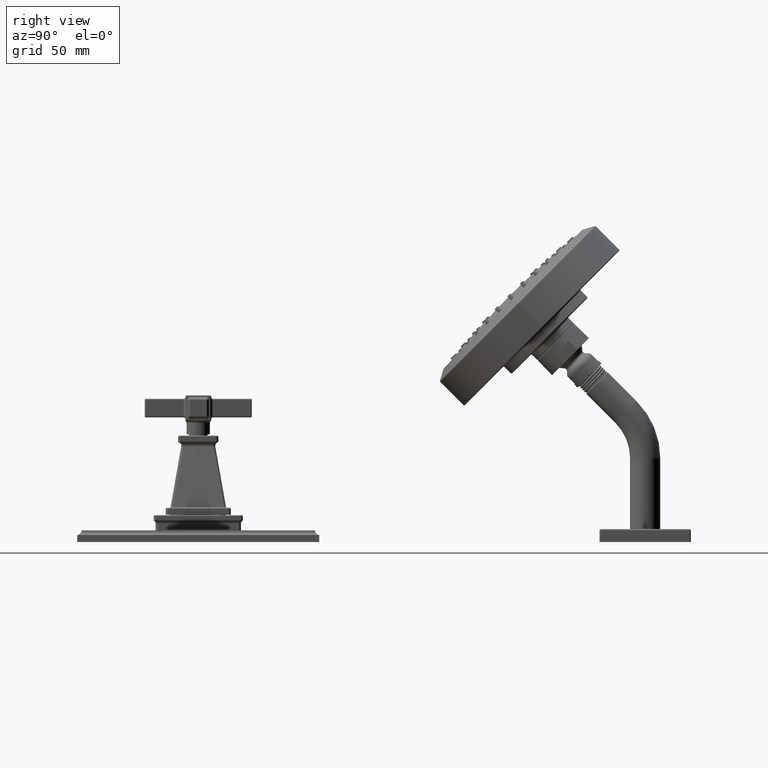
[diagram: clean part render]
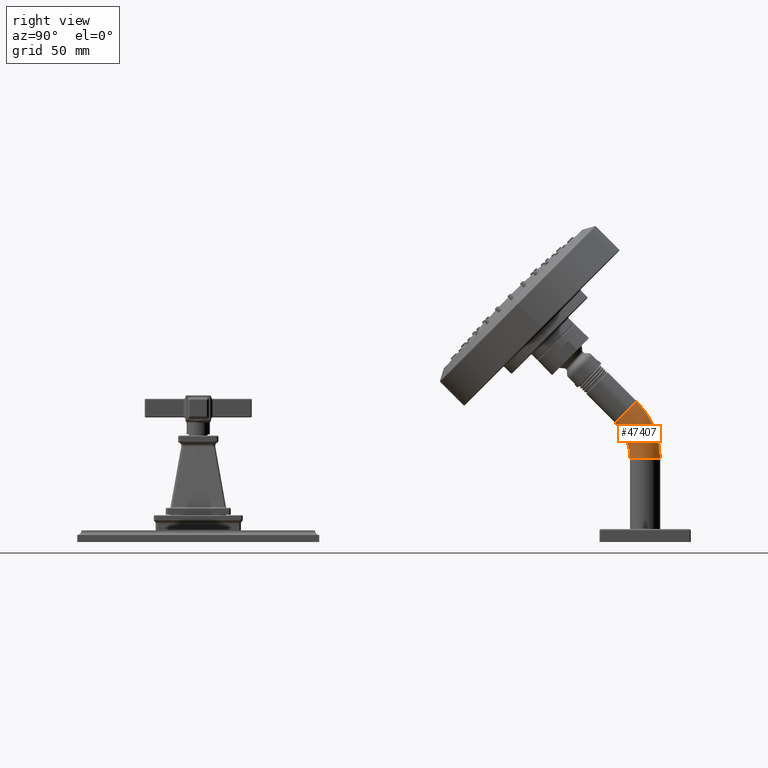
[diagram: same view with one face highlighted and labeled with its STEP entity id]
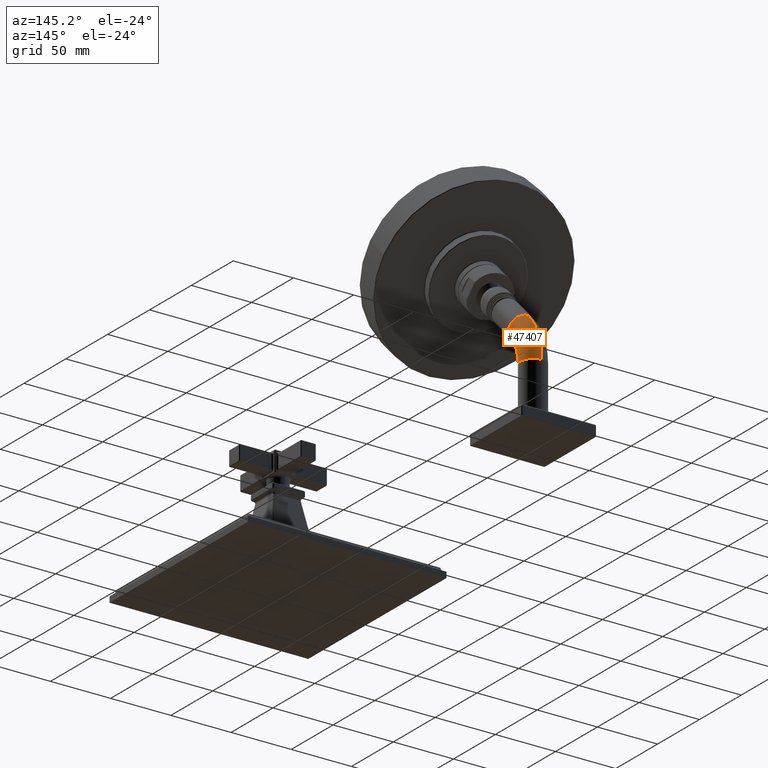
[diagram: same view with one face highlighted and labeled with its STEP entity id]
A machine part, right view. The second image highlights one B-rep face of the part: STEP entity #47407.
A second angle (auxiliary view) of the same face is appended — the face is thin or edge-on in the first view.
In plain terms, the highlighted toroidal blend (fillet) surface has major radius 44.45 mm and minor (blend) radius 10.3187 mm.
Its self-contained STEP definition (entity closure, byte-faithful):
#30164=CARTESIAN_POINT('',(0.E0,1.148743686708E1,3.487436867076E0));
#30165=DIRECTION('',(0.E0,-7.071067811865E-1,7.071067811865E-1));
#30166=DIRECTION('',(0.E0,-7.071067811865E-1,-7.071067811865E-1));
#30167=AXIS2_PLACEMENT_3D('',#30164,#30165,#30166);
#30197=CARTESIAN_POINT('',(0.E0,1.025E1,2.25E0));
#30198=DIRECTION('',(1.E0,0.E0,0.E0));
#30199=DIRECTION('',(0.E0,1.E0,0.E0));
#30200=AXIS2_PLACEMENT_3D('',#30197,#30198,#30199);
#30380=CARTESIAN_POINT('',(0.E0,1.2E1,2.25E0));
#30381=DIRECTION('',(0.E0,0.E0,1.E0));
#30382=DIRECTION('',(0.E0,-1.E0,0.E0));
#30383=AXIS2_PLACEMENT_3D('',#30380,#30381,#30382);
#30385=CARTESIAN_POINT('',(0.E0,1.025E1,2.25E0));
#30386=DIRECTION('',(1.E0,0.E0,0.E0));
#30387=DIRECTION('',(0.E0,1.E0,0.E0));
#30388=AXIS2_PLACEMENT_3D('',#30385,#30386,#30387);
#35300=CARTESIAN_POINT('',(0.E0,1.159375E1,2.25E0));
#35301=CARTESIAN_POINT('',(0.E0,1.240625E1,2.25E0));
#35302=VERTEX_POINT('',#35300);
#35303=VERTEX_POINT('',#35301);
#35304=CARTESIAN_POINT('',(0.E0,1.120017473722E1,3.200174737219E0));
#35305=CARTESIAN_POINT('',(0.E0,1.177469899693E1,3.774698996933E0));
#35306=VERTEX_POINT('',#35304);
#35307=VERTEX_POINT('',#35305);
#47396=CARTESIAN_POINT('',(0.E0,1.025E1,2.25E0));
#47397=DIRECTION('',(1.E0,0.E0,0.E0));
#47398=DIRECTION('',(0.E0,-1.E0,0.E0));
#47399=AXIS2_PLACEMENT_3D('',#47396,#47397,#47398);
#47400=TOROIDAL_SURFACE('',#47399,1.75E0,4.0625E-1);
#47401=ORIENTED_EDGE('',*,*,#47390,.F.);
#47402=ORIENTED_EDGE('',*,*,#47106,.T.);
#47403=ORIENTED_EDGE('',*,*,#47060,.T.);
#47404=ORIENTED_EDGE('',*,*,#47103,.F.);
#47405=EDGE_LOOP('',(#47401,#47402,#47403,#47404));
#47406=FACE_OUTER_BOUND('',#47405,.F.);
#47407=ADVANCED_FACE('',(#47406),#47400,.T.);
#30168=CIRCLE('',#30167,4.0625E-1);
#30201=CIRCLE('',#30200,2.15625E0);
#30384=CIRCLE('',#30383,4.0625E-1);
#30389=CIRCLE('',#30388,1.34375E0);
#47060=EDGE_CURVE('',#35306,#35307,#30168,.T.);
#47103=EDGE_CURVE('',#35303,#35307,#30201,.T.);
#47106=EDGE_CURVE('',#35302,#35306,#30389,.T.);
#47390=EDGE_CURVE('',#35302,#35303,#30384,.T.);